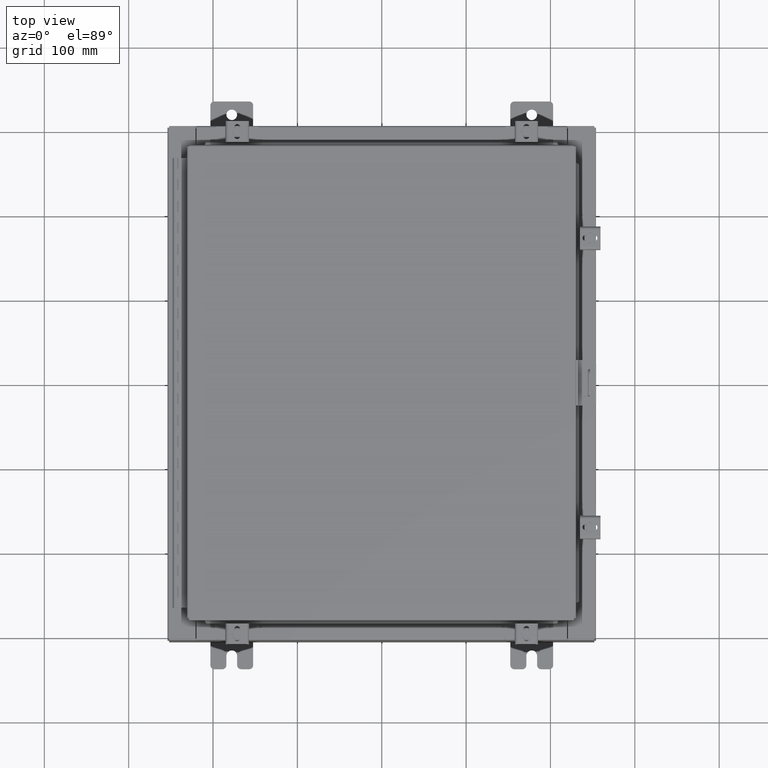
[diagram: clean part render]
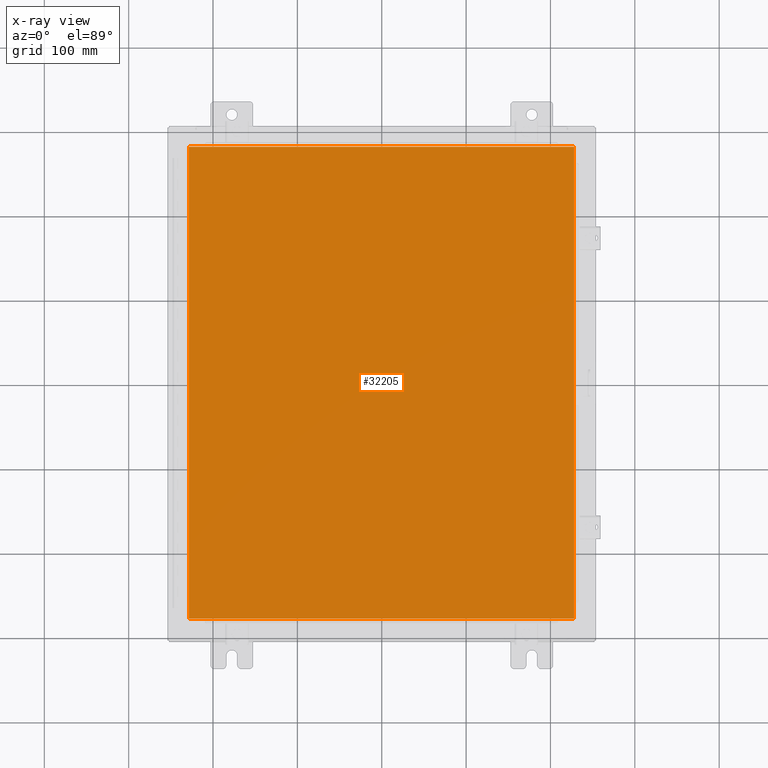
[diagram: x-ray — body ghosted, one internal face saturated and labeled with its STEP entity id]
A machine part, top view, then the same camera in x-ray: the body is ghosted and one INTERNAL B-rep face — a face not visible from any outside direction — is saturated and labeled: STEP entity #32205.
In plain terms, the highlighted planar face has unit normal (0, 0, -1).
Its self-contained STEP definition (entity closure, byte-faithful):
#405 = EDGE_CURVE ( 'NONE', #16950, #14023, #25210, .T. ) ;
#490 = DIRECTION ( 'NONE',  ( 1.000000000000000000, -0.0000000000000000000, -0.0000000000000000000 ) ) ;
#1164 = EDGE_CURVE ( 'NONE', #20332, #16950, #7607, .T. ) ;
#1478 = CARTESIAN_POINT ( 'NONE',  ( -8.990300000000001300, -11.00630000000000100, -0.07469999999999910000 ) ) ;
#4433 = CARTESIAN_POINT ( 'NONE',  ( 0.0000000000000000000, 0.0000000000000000000, -0.07470000000000000300 ) ) ;
#7379 = CARTESIAN_POINT ( 'NONE',  ( 8.990299999999999500, 11.00630000000000000, -0.07470000000000019700 ) ) ;
#7493 = EDGE_CURVE ( 'NONE', #25302, #20332, #18728, .T. ) ;
#7607 = LINE ( 'NONE', #12021, #26804 ) ;
#8560 = EDGE_LOOP ( 'NONE', ( #11628, #30385, #25066, #14450 ) ) ;
#9448 = DIRECTION ( 'NONE',  ( -1.000000000000000000, 0.0000000000000000000, -0.0000000000000000000 ) ) ;
#9951 = LINE ( 'NONE', #31294, #22464 ) ;
#11628 = ORIENTED_EDGE ( 'NONE', *, *, #1164, .F. ) ;
#12021 = CARTESIAN_POINT ( 'NONE',  ( 8.990299999999997700, -11.00630000000000000, -0.07470000000000019700 ) ) ;
#13182 = EDGE_CURVE ( 'NONE', #14023, #25302, #9951, .T. ) ;
#13824 = DIRECTION ( 'NONE',  ( 0.0000000000000000000, -1.000000000000000000, 0.0000000000000000000 ) ) ;
#14023 = VERTEX_POINT ( 'NONE', #15169 ) ;
#14450 = ORIENTED_EDGE ( 'NONE', *, *, #405, .F. ) ;
#15169 = CARTESIAN_POINT ( 'NONE',  ( -8.990299999999999500, 11.00630000000000000, -0.07470000000000000300 ) ) ;
#15316 = CARTESIAN_POINT ( 'NONE',  ( 8.990299999999997700, -11.00630000000000000, -0.07470000000000000300 ) ) ;
#15318 = CARTESIAN_POINT ( 'NONE',  ( 8.990299999999997700, 11.00630000000000000, -0.07470000000000000300 ) ) ;
#16950 = VERTEX_POINT ( 'NONE', #15318 ) ;
#17146 = VECTOR ( 'NONE', #490, 39.37007874015748100 ) ;
#17382 = DIRECTION ( 'NONE',  ( -1.000000000000000000, -0.0000000000000000000, -0.0000000000000000000 ) ) ;
#17728 = FACE_OUTER_BOUND ( 'NONE', #8560, .T. ) ;
#18546 = VECTOR ( 'NONE', #17382, 39.37007874015748100 ) ;
#18728 = LINE ( 'NONE', #1478, #17146 ) ;
#19320 = AXIS2_PLACEMENT_3D ( 'NONE', #4433, #24420, #9448 ) ;
#20332 = VERTEX_POINT ( 'NONE', #15316 ) ;
#21145 = DIRECTION ( 'NONE',  ( 0.0000000000000000000, 1.000000000000000000, 0.0000000000000000000 ) ) ;
#21898 = PLANE ( 'NONE',  #19320 ) ;
#22464 = VECTOR ( 'NONE', #13824, 39.37007874015748100 ) ;
#24420 = DIRECTION ( 'NONE',  ( 0.0000000000000000000, 0.0000000000000000000, -1.000000000000000000 ) ) ;
#25066 = ORIENTED_EDGE ( 'NONE', *, *, #13182, .F. ) ;
#25210 = LINE ( 'NONE', #7379, #18546 ) ;
#25302 = VERTEX_POINT ( 'NONE', #30930 ) ;
#26804 = VECTOR ( 'NONE', #21145, 39.37007874015748100 ) ;
#30385 = ORIENTED_EDGE ( 'NONE', *, *, #7493, .F. ) ;
#30930 = CARTESIAN_POINT ( 'NONE',  ( -8.990299999999997700, -11.00630000000000100, -0.07470000000000000300 ) ) ;
#31294 = CARTESIAN_POINT ( 'NONE',  ( -8.990299999999999500, 11.00630000000000100, -0.07470000000000019700 ) ) ;
#32205 = ADVANCED_FACE ( 'NONE', ( #17728 ), #21898, .T. ) ;